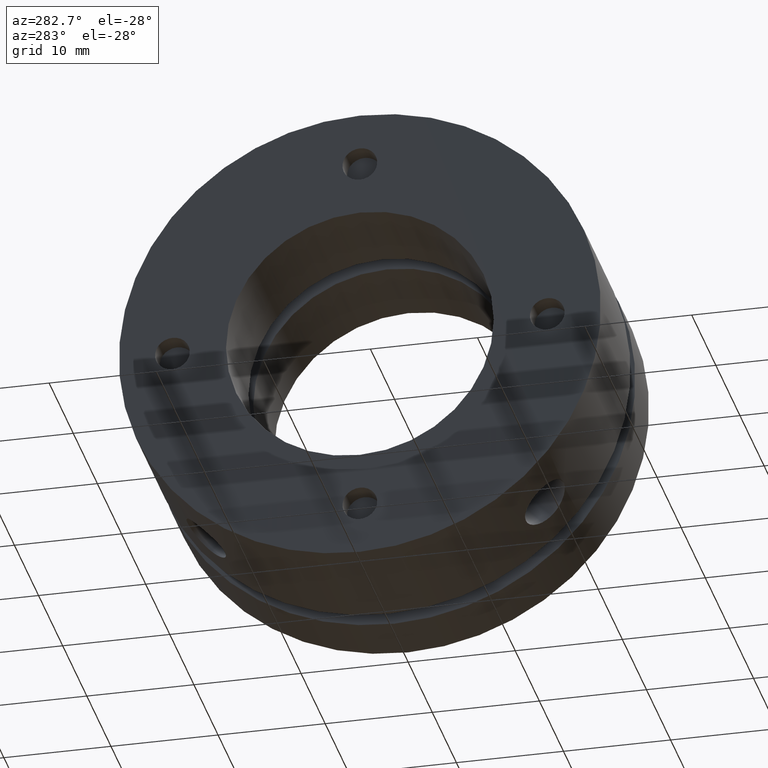
[diagram: clean part render]
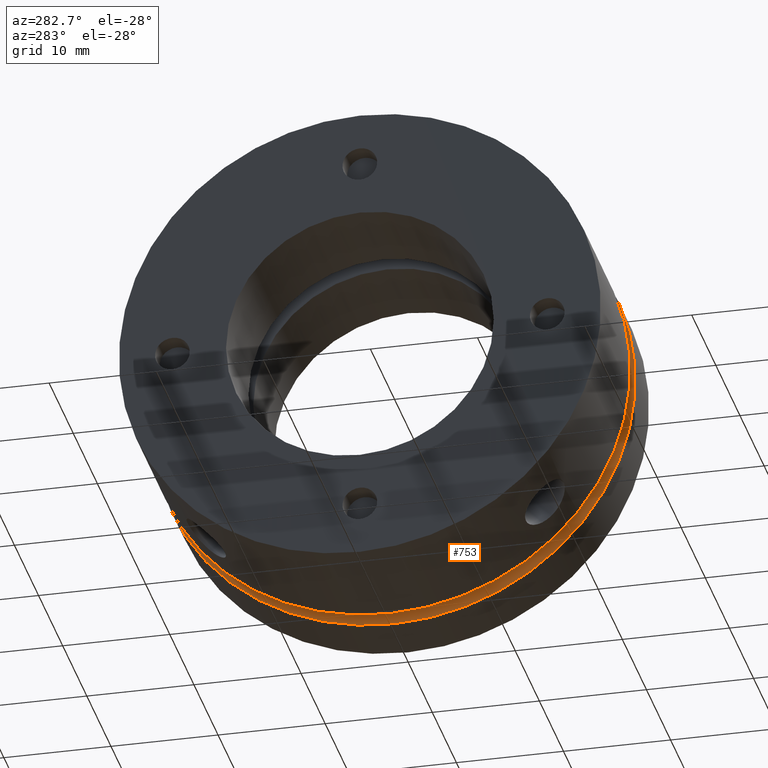
[diagram: same view with one face highlighted and labeled with its STEP entity id]
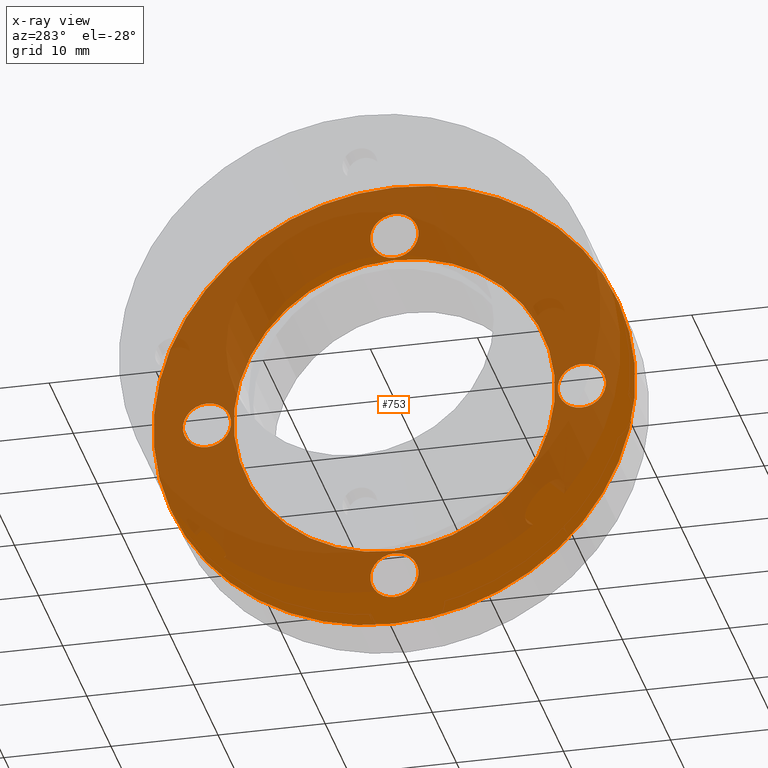
[diagram: x-ray of the same camera — body ghosted, the highlighted face saturated]
A machine part, auxiliary view. The second image highlights one B-rep face of the part: STEP entity #753.
The next image is the same camera in x-ray: the body ghosted, the highlighted face saturated — about 77% of this face is hidden behind the body in this view.
In plain terms, the highlighted planar face has unit normal (1, 0, 0).
Its self-contained STEP definition (entity closure, byte-faithful):
#20 = EDGE_LOOP ( 'NONE', ( #1044, #1045 ) ) ;
#21 = EDGE_LOOP ( 'NONE', ( #1040, #1041 ) ) ;
#22 = EDGE_LOOP ( 'NONE', ( #1036, #1037 ) ) ;
#34 = EDGE_LOOP ( 'NONE', ( #1042, #1043 ) ) ;
#36 = EDGE_LOOP ( 'NONE', ( #1038, #1039 ) ) ;
#38 = EDGE_LOOP ( 'NONE', ( #1034, #1035 ) ) ;
#379 = EDGE_CURVE ( 'NONE', #486, #482, #1590, .T. ) ;
#399 = EDGE_CURVE ( 'NONE', #507, #508, #1616, .T. ) ;
#403 = EDGE_CURVE ( 'NONE', #511, #514, #1625, .T. ) ;
#407 = EDGE_CURVE ( 'NONE', #515, #518, #1631, .T. ) ;
#411 = EDGE_CURVE ( 'NONE', #519, #522, #1637, .T. ) ;
#482 = VERTEX_POINT ( 'NONE', #2411 ) ;
#486 = VERTEX_POINT ( 'NONE', #2415 ) ;
#507 = VERTEX_POINT ( 'NONE', #2436 ) ;
#508 = VERTEX_POINT ( 'NONE', #2437 ) ;
#511 = VERTEX_POINT ( 'NONE', #2440 ) ;
#514 = VERTEX_POINT ( 'NONE', #2443 ) ;
#515 = VERTEX_POINT ( 'NONE', #2444 ) ;
#518 = VERTEX_POINT ( 'NONE', #2447 ) ;
#519 = VERTEX_POINT ( 'NONE', #2448 ) ;
#522 = VERTEX_POINT ( 'NONE', #2451 ) ;
#523 = VERTEX_POINT ( 'NONE', #2452 ) ;
#526 = VERTEX_POINT ( 'NONE', #2455 ) ;
#753 = ADVANCED_FACE ( 'NONE', ( #1719, #1723, #1720, #1722, #1721, #1724 ), #2627, .F. ) ;
#803 = EDGE_CURVE ( 'NONE', #523, #526, #3092, .T. ) ;
#874 = EDGE_CURVE ( 'NONE', #526, #523, #3193, .T. ) ;
#875 = EDGE_CURVE ( 'NONE', #522, #519, #3194, .T. ) ;
#876 = EDGE_CURVE ( 'NONE', #518, #515, #3195, .T. ) ;
#877 = EDGE_CURVE ( 'NONE', #514, #511, #3196, .T. ) ;
#878 = EDGE_CURVE ( 'NONE', #508, #507, #3197, .T. ) ;
#885 = EDGE_CURVE ( 'NONE', #482, #486, #3204, .T. ) ;
#1034 = ORIENTED_EDGE ( 'NONE', *, *, #379, .F. ) ;
#1035 = ORIENTED_EDGE ( 'NONE', *, *, #885, .F. ) ;
#1036 = ORIENTED_EDGE ( 'NONE', *, *, #399, .F. ) ;
#1037 = ORIENTED_EDGE ( 'NONE', *, *, #878, .F. ) ;
#1038 = ORIENTED_EDGE ( 'NONE', *, *, #403, .F. ) ;
#1039 = ORIENTED_EDGE ( 'NONE', *, *, #877, .F. ) ;
#1040 = ORIENTED_EDGE ( 'NONE', *, *, #407, .F. ) ;
#1041 = ORIENTED_EDGE ( 'NONE', *, *, #876, .F. ) ;
#1042 = ORIENTED_EDGE ( 'NONE', *, *, #411, .F. ) ;
#1043 = ORIENTED_EDGE ( 'NONE', *, *, #875, .F. ) ;
#1044 = ORIENTED_EDGE ( 'NONE', *, *, #803, .F. ) ;
#1045 = ORIENTED_EDGE ( 'NONE', *, *, #874, .F. ) ;
#1279 = AXIS2_PLACEMENT_3D ( 'NONE', #2290, #2291, #2292 ) ;
#1289 = AXIS2_PLACEMENT_3D ( 'NONE', #2339, #2340, #2341 ) ;
#1291 = AXIS2_PLACEMENT_3D ( 'NONE', #2349, #2350, #2351 ) ;
#1293 = AXIS2_PLACEMENT_3D ( 'NONE', #2359, #2360, #2361 ) ;
#1295 = AXIS2_PLACEMENT_3D ( 'NONE', #2371, #2372, #2373 ) ;
#1330 = AXIS2_PLACEMENT_3D ( 'NONE', #2628, #2623, #2630 ) ;
#1368 = AXIS2_PLACEMENT_3D ( 'NONE', #2761, #2762, #2763 ) ;
#1411 = AXIS2_PLACEMENT_3D ( 'NONE', #2942, #2943, #2944 ) ;
#1412 = AXIS2_PLACEMENT_3D ( 'NONE', #2945, #2946, #2947 ) ;
#1413 = AXIS2_PLACEMENT_3D ( 'NONE', #2948, #2949, #2950 ) ;
#1414 = AXIS2_PLACEMENT_3D ( 'NONE', #2951, #2952, #2953 ) ;
#1415 = AXIS2_PLACEMENT_3D ( 'NONE', #2954, #2955, #2956 ) ;
#1422 = AXIS2_PLACEMENT_3D ( 'NONE', #2975, #2976, #2977 ) ;
#1590 = CIRCLE ( 'NONE', #1279, 15.00000000000000000 ) ;
#1616 = CIRCLE ( 'NONE', #1289, 2.250000000000000400 ) ;
#1625 = CIRCLE ( 'NONE', #1291, 2.250000000000000400 ) ;
#1631 = CIRCLE ( 'NONE', #1293, 2.249999999999998700 ) ;
#1637 = CIRCLE ( 'NONE', #1295, 2.250000000000000400 ) ;
#1719 = FACE_BOUND ( 'NONE', #38, .T. ) ;
#1720 = FACE_BOUND ( 'NONE', #36, .T. ) ;
#1721 = FACE_BOUND ( 'NONE', #34, .T. ) ;
#1722 = FACE_BOUND ( 'NONE', #21, .T. ) ;
#1723 = FACE_BOUND ( 'NONE', #22, .T. ) ;
#1724 = FACE_OUTER_BOUND ( 'NONE', #20, .T. ) ;
#2290 = CARTESIAN_POINT ( 'NONE',  ( 14.29999999999999900, 0.0000000000000000000, 0.0000000000000000000 ) ) ;
#2291 = DIRECTION ( 'NONE',  ( -1.000000000000000000, 0.0000000000000000000, 0.0000000000000000000 ) ) ;
#2292 = DIRECTION ( 'NONE',  ( 0.0000000000000000000, 0.0000000000000000000, 1.000000000000000000 ) ) ;
#2339 = CARTESIAN_POINT ( 'NONE',  ( 14.29999999999999900, 0.0000000000000000000, 17.50000000000000400 ) ) ;
#2340 = DIRECTION ( 'NONE',  ( -1.000000000000000000, -0.0000000000000000000, -0.0000000000000000000 ) ) ;
#2341 = DIRECTION ( 'NONE',  ( 0.0000000000000000000, 0.0000000000000000000, -1.000000000000000000 ) ) ;
#2349 = CARTESIAN_POINT ( 'NONE',  ( 14.29999999999999900, -17.50000000000000400, 1.071565999999999900E-015 ) ) ;
#2350 = DIRECTION ( 'NONE',  ( -1.000000000000000000, -0.0000000000000000000, -0.0000000000000000000 ) ) ;
#2351 = DIRECTION ( 'NONE',  ( 0.0000000000000000000, 0.0000000000000000000, -1.000000000000000000 ) ) ;
#2359 = CARTESIAN_POINT ( 'NONE',  ( 14.29999999999999900, -2.143131999999999800E-015, -17.50000000000000400 ) ) ;
#2360 = DIRECTION ( 'NONE',  ( -1.000000000000000000, -0.0000000000000000000, -0.0000000000000000000 ) ) ;
#2361 = DIRECTION ( 'NONE',  ( 0.0000000000000000000, 0.0000000000000000000, -1.000000000000000000 ) ) ;
#2371 = CARTESIAN_POINT ( 'NONE',  ( 14.29999999999999900, 17.50000000000000400, -3.214698000000000300E-015 ) ) ;
#2372 = DIRECTION ( 'NONE',  ( -1.000000000000000000, -0.0000000000000000000, -0.0000000000000000000 ) ) ;
#2373 = DIRECTION ( 'NONE',  ( 0.0000000000000000000, 0.0000000000000000000, -1.000000000000000000 ) ) ;
#2411 = CARTESIAN_POINT ( 'NONE',  ( 14.29999999999999900, 1.836970198721029600E-015, -15.00000000000000000 ) ) ;
#2415 = CARTESIAN_POINT ( 'NONE',  ( 14.29999999999999900, 0.0000000000000000000, 15.00000000000000000 ) ) ;
#2436 = CARTESIAN_POINT ( 'NONE',  ( 14.29999999999999900, 0.0000000000000000000, 15.25000000000000500 ) ) ;
#2437 = CARTESIAN_POINT ( 'NONE',  ( 14.29999999999999900, 2.755455298081546700E-016, 19.75000000000000400 ) ) ;
#2440 = CARTESIAN_POINT ( 'NONE',  ( 14.29999999999999900, -17.50000000000000400, -2.249999999999999600 ) ) ;
#2443 = CARTESIAN_POINT ( 'NONE',  ( 14.29999999999999900, -17.50000000000000400, 2.250000000000001300 ) ) ;
#2444 = CARTESIAN_POINT ( 'NONE',  ( 14.29999999999999900, -2.143131999999999800E-015, -19.75000000000000400 ) ) ;
#2447 = CARTESIAN_POINT ( 'NONE',  ( 14.29999999999999900, -1.867586470191845300E-015, -15.25000000000000500 ) ) ;
#2448 = CARTESIAN_POINT ( 'NONE',  ( 14.29999999999999900, 17.50000000000000400, -2.250000000000003100 ) ) ;
#2451 = CARTESIAN_POINT ( 'NONE',  ( 14.29999999999999900, 17.50000000000000400, 2.249999999999997300 ) ) ;
#2452 = CARTESIAN_POINT ( 'NONE',  ( 14.29999999999999900, 0.0000000000000000000, -22.50000000000000000 ) ) ;
#2455 = CARTESIAN_POINT ( 'NONE',  ( 14.29999999999999900, 2.755455298081544800E-015, 22.50000000000000000 ) ) ;
#2623 = DIRECTION ( 'NONE',  ( 1.000000000000000000, -0.0000000000000000000, 0.0000000000000000000 ) ) ;
#2627 = PLANE ( 'NONE',  #1330 ) ;
#2628 = CARTESIAN_POINT ( 'NONE',  ( 14.29999999999999900, 18.75000000000000000, 0.0000000000000000000 ) ) ;
#2630 = DIRECTION ( 'NONE',  ( 0.0000000000000000000, 0.0000000000000000000, -1.000000000000000000 ) ) ;
#2761 = CARTESIAN_POINT ( 'NONE',  ( 14.29999999999999900, 0.0000000000000000000, 0.0000000000000000000 ) ) ;
#2762 = DIRECTION ( 'NONE',  ( 1.000000000000000000, 0.0000000000000000000, 0.0000000000000000000 ) ) ;
#2763 = DIRECTION ( 'NONE',  ( 0.0000000000000000000, 0.0000000000000000000, -1.000000000000000000 ) ) ;
#2942 = CARTESIAN_POINT ( 'NONE',  ( 14.29999999999999900, 0.0000000000000000000, 0.0000000000000000000 ) ) ;
#2943 = DIRECTION ( 'NONE',  ( 1.000000000000000000, 0.0000000000000000000, 0.0000000000000000000 ) ) ;
#2944 = DIRECTION ( 'NONE',  ( 0.0000000000000000000, 0.0000000000000000000, -1.000000000000000000 ) ) ;
#2945 = CARTESIAN_POINT ( 'NONE',  ( 14.29999999999999900, 17.50000000000000400, -3.214698000000000300E-015 ) ) ;
#2946 = DIRECTION ( 'NONE',  ( -1.000000000000000000, -0.0000000000000000000, -0.0000000000000000000 ) ) ;
#2947 = DIRECTION ( 'NONE',  ( 0.0000000000000000000, 0.0000000000000000000, -1.000000000000000000 ) ) ;
#2948 = CARTESIAN_POINT ( 'NONE',  ( 14.29999999999999900, -2.143131999999999800E-015, -17.50000000000000400 ) ) ;
#2949 = DIRECTION ( 'NONE',  ( -1.000000000000000000, -0.0000000000000000000, -0.0000000000000000000 ) ) ;
#2950 = DIRECTION ( 'NONE',  ( 0.0000000000000000000, 0.0000000000000000000, -1.000000000000000000 ) ) ;
#2951 = CARTESIAN_POINT ( 'NONE',  ( 14.29999999999999900, -17.50000000000000400, 1.071565999999999900E-015 ) ) ;
#2952 = DIRECTION ( 'NONE',  ( -1.000000000000000000, -0.0000000000000000000, -0.0000000000000000000 ) ) ;
#2953 = DIRECTION ( 'NONE',  ( 0.0000000000000000000, 0.0000000000000000000, -1.000000000000000000 ) ) ;
#2954 = CARTESIAN_POINT ( 'NONE',  ( 14.29999999999999900, 0.0000000000000000000, 17.50000000000000400 ) ) ;
#2955 = DIRECTION ( 'NONE',  ( -1.000000000000000000, -0.0000000000000000000, -0.0000000000000000000 ) ) ;
#2956 = DIRECTION ( 'NONE',  ( 0.0000000000000000000, 0.0000000000000000000, -1.000000000000000000 ) ) ;
#2975 = CARTESIAN_POINT ( 'NONE',  ( 14.29999999999999900, 0.0000000000000000000, 0.0000000000000000000 ) ) ;
#2976 = DIRECTION ( 'NONE',  ( -1.000000000000000000, 0.0000000000000000000, 0.0000000000000000000 ) ) ;
#2977 = DIRECTION ( 'NONE',  ( 0.0000000000000000000, 0.0000000000000000000, 1.000000000000000000 ) ) ;
#3092 = CIRCLE ( 'NONE', #1368, 22.50000000000000000 ) ;
#3193 = CIRCLE ( 'NONE', #1411, 22.50000000000000000 ) ;
#3194 = CIRCLE ( 'NONE', #1412, 2.250000000000000400 ) ;
#3195 = CIRCLE ( 'NONE', #1413, 2.249999999999998700 ) ;
#3196 = CIRCLE ( 'NONE', #1414, 2.250000000000000400 ) ;
#3197 = CIRCLE ( 'NONE', #1415, 2.250000000000000400 ) ;
#3204 = CIRCLE ( 'NONE', #1422, 15.00000000000000000 ) ;